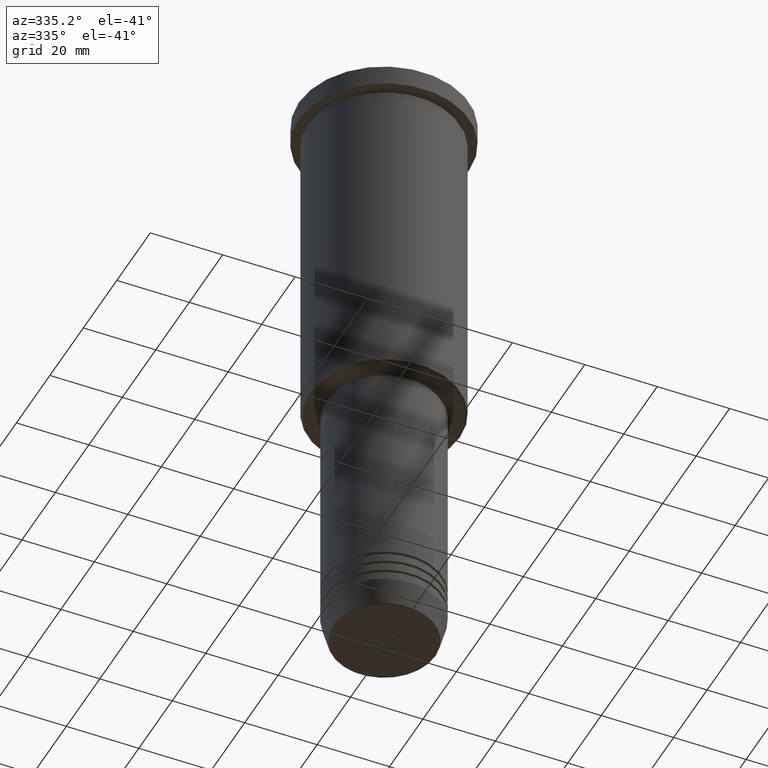
[diagram: clean part render]
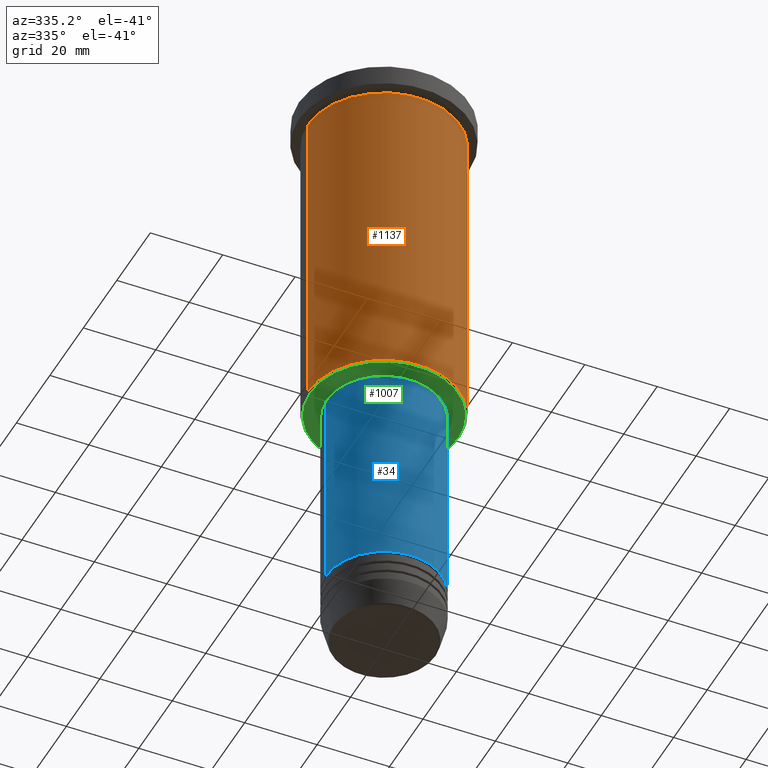
[diagram: same view with three faces highlighted in distinct colors, each labeled with its STEP entity id]
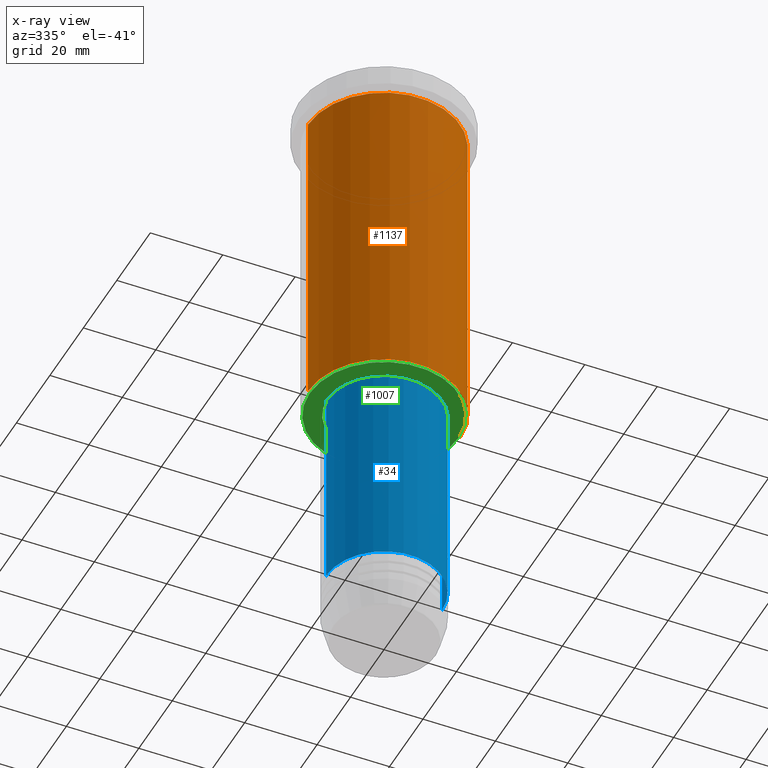
[diagram: x-ray of the same camera — body ghosted, the three highlighted faces saturated]
A machine part, auxiliary view with three faces highlighted in distinct colors.
The next image is the same camera in x-ray (body ghosted, the three faces saturated) — at least one of them is partly hidden behind the body in this view.
Their STEP definitions:

[orange] entity #1137 — the highlighted cylindrical surface (partial cylindrical patch) has radius 21 mm, axis along (-0, -0, 1).
#10 = DIRECTION ( 'NONE',  ( -0.000000000000000000, -0.000000000000000000, 1.000000000000000000 ) ) ;
#81 = EDGE_CURVE ( 'NONE', #702, #1039, #999, .T. ) ;
#88 = CIRCLE ( 'NONE', #531, 21.00000000000000000 ) ;
#101 = FACE_OUTER_BOUND ( 'NONE', #529, .T. ) ;
#134 = DIRECTION ( 'NONE',  ( -0.000000000000000000, -0.000000000000000000, 1.000000000000000000 ) ) ;
#167 = ORIENTED_EDGE ( 'NONE', *, *, #770, .T. ) ;
#208 = AXIS2_PLACEMENT_3D ( 'NONE', #645, #1113, #847 ) ;
#211 = LINE ( 'NONE', #387, #889 ) ;
#255 = CARTESIAN_POINT ( 'NONE',  ( 21.00000000000000000, 0.000000000000000000, -95.49999999999997158 ) ) ;
#272 = LINE ( 'NONE', #378, #455 ) ;
#363 = VERTEX_POINT ( 'NONE', #255 ) ;
#378 = CARTESIAN_POINT ( 'NONE',  ( 21.00000000000000000, 0.000000000000000000, 0.000000000000000000 ) ) ;
#387 = CARTESIAN_POINT ( 'NONE',  ( -21.00000000000000000, 2.571758278209441661E-15, 0.000000000000000000 ) ) ;
#455 = VECTOR ( 'NONE', #729, 1000.000000000000000 ) ;
#464 = CYLINDRICAL_SURFACE ( 'NONE', #710, 21.00000000000000000 ) ;
#490 = EDGE_CURVE ( 'NONE', #611, #702, #211, .T. ) ;
#520 = ORIENTED_EDGE ( 'NONE', *, *, #81, .F. ) ;
#529 = EDGE_LOOP ( 'NONE', ( #550, #167, #1095, #520 ) ) ;
#531 = AXIS2_PLACEMENT_3D ( 'NONE', #1033, #134, #1122 ) ;
#550 = ORIENTED_EDGE ( 'NONE', *, *, #490, .F. ) ;
#611 = VERTEX_POINT ( 'NONE', #1109 ) ;
#645 = CARTESIAN_POINT ( 'NONE',  ( 0.000000000000000000, 0.000000000000000000, -6.999999999999994671 ) ) ;
#652 = DIRECTION ( 'NONE',  ( -0.000000000000000000, -0.000000000000000000, 1.000000000000000000 ) ) ;
#702 = VERTEX_POINT ( 'NONE', #838 ) ;
#710 = AXIS2_PLACEMENT_3D ( 'NONE', #824, #10, #1100 ) ;
#729 = DIRECTION ( 'NONE',  ( -0.000000000000000000, -0.000000000000000000, 1.000000000000000000 ) ) ;
#767 = CARTESIAN_POINT ( 'NONE',  ( 21.00000000000000000, 0.000000000000000000, -6.999999999999994671 ) ) ;
#770 = EDGE_CURVE ( 'NONE', #611, #363, #88, .T. ) ;
#824 = CARTESIAN_POINT ( 'NONE',  ( 0.000000000000000000, 0.000000000000000000, 0.000000000000000000 ) ) ;
#838 = CARTESIAN_POINT ( 'NONE',  ( -21.00000000000000000, 2.571758278209441661E-15, -6.999999999999994671 ) ) ;
#847 = DIRECTION ( 'NONE',  ( 1.000000000000000000, 0.000000000000000000, 0.000000000000000000 ) ) ;
#889 = VECTOR ( 'NONE', #652, 1000.000000000000000 ) ;
#999 = CIRCLE ( 'NONE', #208, 21.00000000000000000 ) ;
#1033 = CARTESIAN_POINT ( 'NONE',  ( 0.000000000000000000, 0.000000000000000000, -95.49999999999997158 ) ) ;
#1039 = VERTEX_POINT ( 'NONE', #767 ) ;
#1094 = EDGE_CURVE ( 'NONE', #363, #1039, #272, .T. ) ;
#1095 = ORIENTED_EDGE ( 'NONE', *, *, #1094, .T. ) ;
#1100 = DIRECTION ( 'NONE',  ( 1.000000000000000000, 0.000000000000000000, 0.000000000000000000 ) ) ;
#1109 = CARTESIAN_POINT ( 'NONE',  ( -21.00000000000000000, 2.571758278209441661E-15, -95.49999999999997158 ) ) ;
#1113 = DIRECTION ( 'NONE',  ( -0.000000000000000000, -0.000000000000000000, 1.000000000000000000 ) ) ;
#1122 = DIRECTION ( 'NONE',  ( -1.000000000000000000, 0.000000000000000000, 0.000000000000000000 ) ) ;
#1137 = ADVANCED_FACE ( 'NONE', ( #101 ), #464, .T. ) ;

[blue] entity #34 — the highlighted cylindrical surface (partial cylindrical patch) has radius 16 mm, axis along (-0, -0, 1).
#34 = ADVANCED_FACE ( 'NONE', ( #745 ), #1108, .T. ) ;
#83 = EDGE_LOOP ( 'NONE', ( #547, #332, #684, #1151 ) ) ;
#106 = EDGE_CURVE ( 'NONE', #351, #149, #360, .T. ) ;
#118 = CARTESIAN_POINT ( 'NONE',  ( 0.000000000000000000, 0.000000000000000000, -154.9999999999999716 ) ) ;
#121 = CARTESIAN_POINT ( 'NONE',  ( 0.000000000000000000, 0.000000000000000000, 0.000000000000000000 ) ) ;
#149 = VERTEX_POINT ( 'NONE', #327 ) ;
#157 = DIRECTION ( 'NONE',  ( -0.000000000000000000, -0.000000000000000000, 1.000000000000000000 ) ) ;
#200 = DIRECTION ( 'NONE',  ( 1.000000000000000000, 0.000000000000000000, 0.000000000000000000 ) ) ;
#243 = VECTOR ( 'NONE', #157, 1000.000000000000000 ) ;
#248 = CARTESIAN_POINT ( 'NONE',  ( 0.000000000000000000, 0.000000000000000000, -97.00000000000000000 ) ) ;
#327 = CARTESIAN_POINT ( 'NONE',  ( 16.00000000000000000, 0.000000000000000000, -154.9999999999999716 ) ) ;
#332 = ORIENTED_EDGE ( 'NONE', *, *, #106, .T. ) ;
#351 = VERTEX_POINT ( 'NONE', #429 ) ;
#357 = DIRECTION ( 'NONE',  ( 1.000000000000000000, 0.000000000000000000, 0.000000000000000000 ) ) ;
#360 = CIRCLE ( 'NONE', #870, 16.00000000000000000 ) ;
#361 = LINE ( 'NONE', #570, #1096 ) ;
#394 = DIRECTION ( 'NONE',  ( 1.000000000000000000, 0.000000000000000000, 0.000000000000000000 ) ) ;
#429 = CARTESIAN_POINT ( 'NONE',  ( -16.00000000000000000, 1.959434878635765131E-15, -154.9999999999999716 ) ) ;
#485 = CARTESIAN_POINT ( 'NONE',  ( 16.00000000000000000, 0.000000000000000000, -97.00000000000000000 ) ) ;
#489 = DIRECTION ( 'NONE',  ( -0.000000000000000000, -0.000000000000000000, 1.000000000000000000 ) ) ;
#547 = ORIENTED_EDGE ( 'NONE', *, *, #585, .F. ) ;
#551 = EDGE_CURVE ( 'NONE', #630, #1166, #926, .T. ) ;
#570 = CARTESIAN_POINT ( 'NONE',  ( 16.00000000000000000, 0.000000000000000000, 0.000000000000000000 ) ) ;
#585 = EDGE_CURVE ( 'NONE', #351, #630, #971, .T. ) ;
#618 = DIRECTION ( 'NONE',  ( -0.000000000000000000, -0.000000000000000000, 1.000000000000000000 ) ) ;
#630 = VERTEX_POINT ( 'NONE', #1097 ) ;
#684 = ORIENTED_EDGE ( 'NONE', *, *, #982, .T. ) ;
#709 = CARTESIAN_POINT ( 'NONE',  ( -16.00000000000000000, 1.959434878635765131E-15, 0.000000000000000000 ) ) ;
#730 = DIRECTION ( 'NONE',  ( -0.000000000000000000, -0.000000000000000000, 1.000000000000000000 ) ) ;
#745 = FACE_OUTER_BOUND ( 'NONE', #83, .T. ) ;
#852 = AXIS2_PLACEMENT_3D ( 'NONE', #121, #730, #394 ) ;
#870 = AXIS2_PLACEMENT_3D ( 'NONE', #118, #489, #200 ) ;
#871 = AXIS2_PLACEMENT_3D ( 'NONE', #248, #618, #357 ) ;
#925 = DIRECTION ( 'NONE',  ( -0.000000000000000000, -0.000000000000000000, 1.000000000000000000 ) ) ;
#926 = CIRCLE ( 'NONE', #871, 16.00000000000000000 ) ;
#971 = LINE ( 'NONE', #709, #243 ) ;
#982 = EDGE_CURVE ( 'NONE', #149, #1166, #361, .T. ) ;
#1096 = VECTOR ( 'NONE', #925, 1000.000000000000000 ) ;
#1097 = CARTESIAN_POINT ( 'NONE',  ( -16.00000000000000000, 1.959434878635765131E-15, -97.00000000000000000 ) ) ;
#1108 = CYLINDRICAL_SURFACE ( 'NONE', #852, 16.00000000000000000 ) ;
#1151 = ORIENTED_EDGE ( 'NONE', *, *, #551, .F. ) ;
#1166 = VERTEX_POINT ( 'NONE', #485 ) ;

[green] entity #1007 — the highlighted planar face has unit normal (0, 0, -1).
#31 = AXIS2_PLACEMENT_3D ( 'NONE', #715, #557, #285 ) ;
#71 = ORIENTED_EDGE ( 'NONE', *, *, #661, .T. ) ;
#116 = CIRCLE ( 'NONE', #714, 20.49999999999998934 ) ;
#139 = CIRCLE ( 'NONE', #239, 15.50000000000000000 ) ;
#148 = EDGE_LOOP ( 'NONE', ( #1032, #440 ) ) ;
#160 = AXIS2_PLACEMENT_3D ( 'NONE', #777, #1142, #959 ) ;
#239 = AXIS2_PLACEMENT_3D ( 'NONE', #1005, #991, #472 ) ;
#285 = DIRECTION ( 'NONE',  ( -1.000000000000000000, 0.000000000000000000, -0.000000000000000000 ) ) ;
#291 = CARTESIAN_POINT ( 'NONE',  ( 20.49999999999998934, 0.000000000000000000, -96.00000000000000000 ) ) ;
#427 = CARTESIAN_POINT ( 'NONE',  ( 0.000000000000000000, 0.000000000000000000, -96.00000000000000000 ) ) ;
#440 = ORIENTED_EDGE ( 'NONE', *, *, #804, .T. ) ;
#441 = DIRECTION ( 'NONE',  ( 0.000000000000000000, 0.000000000000000000, -1.000000000000000000 ) ) ;
#459 = CARTESIAN_POINT ( 'NONE',  ( 15.50000000000000000, 0.000000000000000000, -96.00000000000000000 ) ) ;
#472 = DIRECTION ( 'NONE',  ( 1.000000000000000000, 0.000000000000000000, 0.000000000000000000 ) ) ;
#557 = DIRECTION ( 'NONE',  ( 0.000000000000000000, 0.000000000000000000, -1.000000000000000000 ) ) ;
#558 = EDGE_CURVE ( 'NONE', #654, #1147, #657, .T. ) ;
#625 = VERTEX_POINT ( 'NONE', #459 ) ;
#640 = ORIENTED_EDGE ( 'NONE', *, *, #558, .T. ) ;
#654 = VERTEX_POINT ( 'NONE', #291 ) ;
#657 = CIRCLE ( 'NONE', #932, 20.49999999999998934 ) ;
#661 = EDGE_CURVE ( 'NONE', #1147, #654, #116, .T. ) ;
#714 = AXIS2_PLACEMENT_3D ( 'NONE', #1008, #747, #1105 ) ;
#715 = CARTESIAN_POINT ( 'NONE',  ( 0.000000000000000000, 21.00000000000000000, -96.00000000000000000 ) ) ;
#744 = CARTESIAN_POINT ( 'NONE',  ( -20.49999999999998934, 2.541142108230757480E-15, -96.00000000000000000 ) ) ;
#747 = DIRECTION ( 'NONE',  ( 0.000000000000000000, 0.000000000000000000, -1.000000000000000000 ) ) ;
#777 = CARTESIAN_POINT ( 'NONE',  ( 0.000000000000000000, 0.000000000000000000, -96.00000000000000000 ) ) ;
#785 = DIRECTION ( 'NONE',  ( -1.000000000000000000, 0.000000000000000000, 0.000000000000000000 ) ) ;
#789 = EDGE_LOOP ( 'NONE', ( #640, #71 ) ) ;
#804 = EDGE_CURVE ( 'NONE', #1047, #625, #1155, .T. ) ;
#819 = PLANE ( 'NONE',  #31 ) ;
#825 = FACE_BOUND ( 'NONE', #148, .T. ) ;
#932 = AXIS2_PLACEMENT_3D ( 'NONE', #427, #441, #785 ) ;
#959 = DIRECTION ( 'NONE',  ( 1.000000000000000000, 0.000000000000000000, 0.000000000000000000 ) ) ;
#991 = DIRECTION ( 'NONE',  ( -0.000000000000000000, -0.000000000000000000, 1.000000000000000000 ) ) ;
#996 = FACE_OUTER_BOUND ( 'NONE', #789, .T. ) ;
#1005 = CARTESIAN_POINT ( 'NONE',  ( 0.000000000000000000, 0.000000000000000000, -96.00000000000000000 ) ) ;
#1007 = ADVANCED_FACE ( 'NONE', ( #996, #825 ), #819, .T. ) ;
#1008 = CARTESIAN_POINT ( 'NONE',  ( 0.000000000000000000, 0.000000000000000000, -96.00000000000000000 ) ) ;
#1032 = ORIENTED_EDGE ( 'NONE', *, *, #1110, .T. ) ;
#1047 = VERTEX_POINT ( 'NONE', #1164 ) ;
#1105 = DIRECTION ( 'NONE',  ( -1.000000000000000000, 0.000000000000000000, 0.000000000000000000 ) ) ;
#1110 = EDGE_CURVE ( 'NONE', #625, #1047, #139, .T. ) ;
#1142 = DIRECTION ( 'NONE',  ( -0.000000000000000000, -0.000000000000000000, 1.000000000000000000 ) ) ;
#1147 = VERTEX_POINT ( 'NONE', #744 ) ;
#1155 = CIRCLE ( 'NONE', #160, 15.50000000000000000 ) ;
#1164 = CARTESIAN_POINT ( 'NONE',  ( -15.50000000000000000, 1.898202538678397557E-15, -96.00000000000000000 ) ) ;